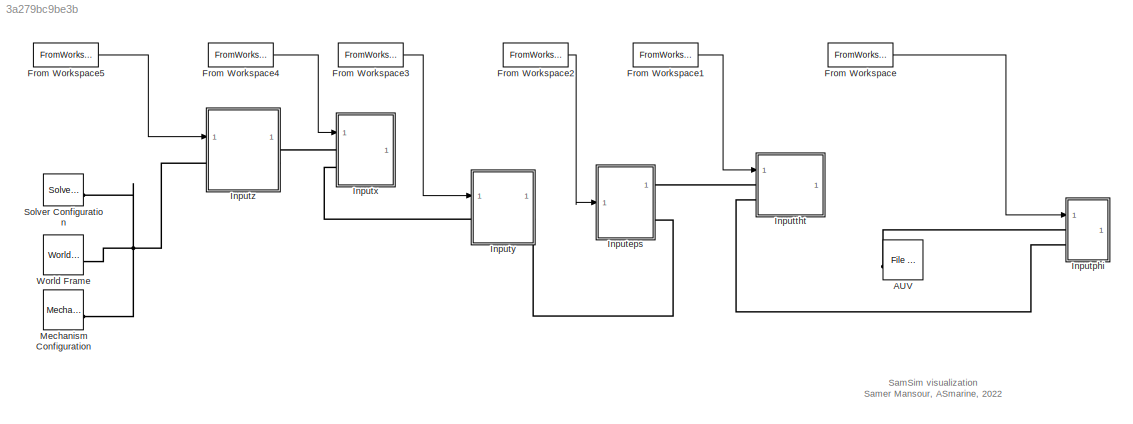
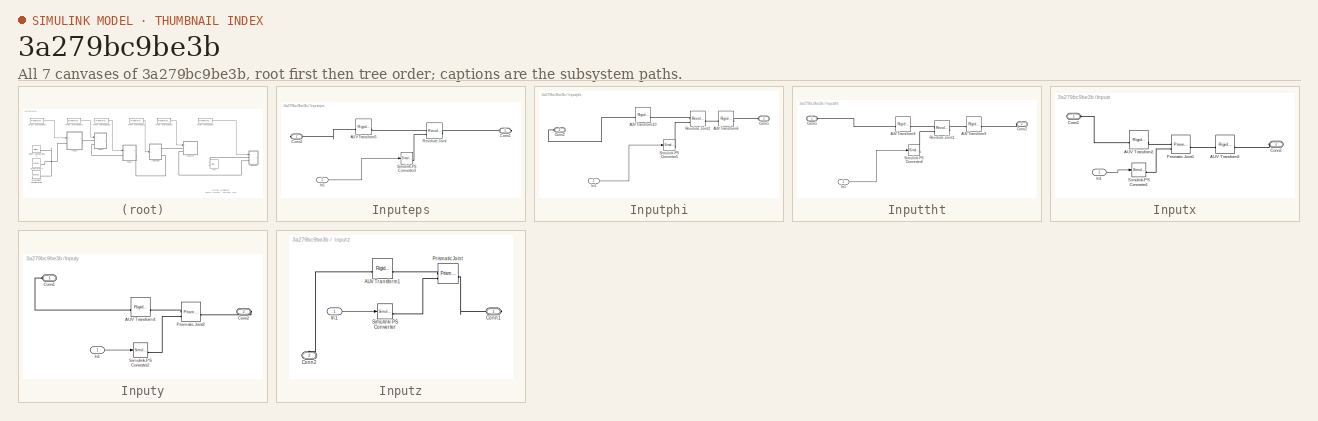
[diagram: thumbnail index - all 7 canvases of the model, root first then tree order]
MODEL slx_3a279bc9be3b
KIND model
CONFIG AbsTol = auto
CONFIG EnableMultiTasking = off
CONFIG FixedStep = auto
CONFIG MaxStep = auto
CONFIG MinStep = auto
CONFIG RelTol = 1e-3
CONFIG SampleTimeConstraint = Unconstrained
CONFIG SolverName = VariableStepAuto
CONFIG StartTime = 0.0
CONFIG StopTime = dur_vid
BLOCK [Reference] AUV  REF=sm_lib/Body Elements/File Solid
  SourceBlock = sm_lib/Body Elements/File Solid
  SourceType = File Solid
BLOCK [FromWorkspace] From Workspace
  VariableName = NNphi
BLOCK [FromWorkspace] From Workspace1
  VariableName = NNtht
BLOCK [FromWorkspace] From Workspace2
  VariableName = NNeps
BLOCK [FromWorkspace] From Workspace3
  VariableName = NNy
BLOCK [FromWorkspace] From Workspace4
  VariableName = NNx
BLOCK [FromWorkspace] From Workspace5
  VariableName = NNz
BLOCK [SubSystem] Inputeps
BLOCK [Reference] Inputeps/AUV Transform5  REF=sm_lib/Frames and
Transforms/Rigid
Transform
  SourceBlock = sm_lib/Frames and\nTransforms/Rigid\nTransform
  SourceType = Rigid\nTransform
BLOCK [PMIOPort] Inputeps/Conn1
  Side = Right
BLOCK [PMIOPort] Inputeps/Conn2
  Port = 2
  Side = Right
BLOCK [Inport] Inputeps/In1
BLOCK [Reference] Inputeps/Revolute Joint  REF=sm_lib/Joints/Revolute Joint
  SourceBlock = sm_lib/Joints/Revolute Joint
  SourceType = Revolute Joint
BLOCK [Reference] Inputeps/Simulink-PS Converter3  REF=nesl_utility/Simulink-PS
Converter
  SourceBlock = nesl_utility/Simulink-PS\nConverter
  SourceType = Simulink-PS\nConverter
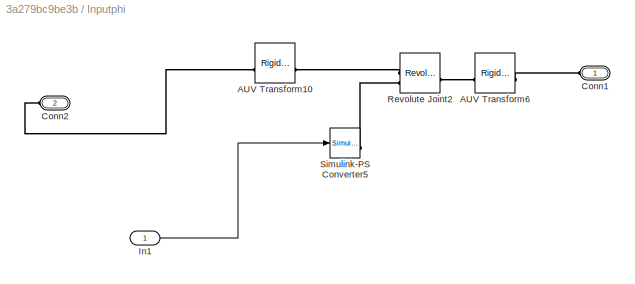
BLOCK [SubSystem] Inputphi
BLOCK [Reference] Inputphi/AUV Transform10  REF=sm_lib/Frames and
Transforms/Rigid
Transform
  SourceBlock = sm_lib/Frames and\nTransforms/Rigid\nTransform
  SourceType = Rigid\nTransform
BLOCK [Reference] Inputphi/AUV Transform6  REF=sm_lib/Frames and
Transforms/Rigid
Transform
  SourceBlock = sm_lib/Frames and\nTransforms/Rigid\nTransform
  SourceType = Rigid\nTransform
BLOCK [PMIOPort] Inputphi/Conn1
  Side = Left
BLOCK [PMIOPort] Inputphi/Conn2
  Port = 2
  Side = Left
BLOCK [Inport] Inputphi/In1
BLOCK [Reference] Inputphi/Revolute Joint2  REF=sm_lib/Joints/Revolute Joint
  SourceBlock = sm_lib/Joints/Revolute Joint
  SourceType = Revolute Joint
BLOCK [Reference] Inputphi/Simulink-PS Converter5  REF=nesl_utility/Simulink-PS
Converter
  SourceBlock = nesl_utility/Simulink-PS\nConverter
  SourceType = Simulink-PS\nConverter
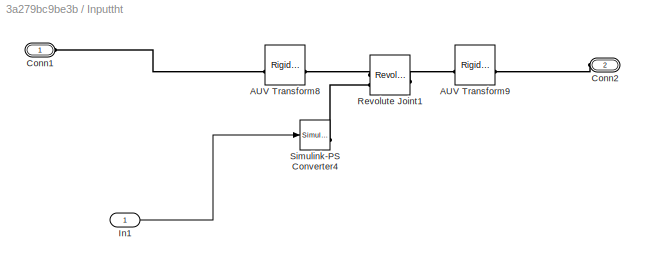
BLOCK [SubSystem] Inputtht
BLOCK [Reference] Inputtht/AUV Transform8  REF=sm_lib/Frames and
Transforms/Rigid
Transform
  SourceBlock = sm_lib/Frames and\nTransforms/Rigid\nTransform
  SourceType = Rigid\nTransform
BLOCK [Reference] Inputtht/AUV Transform9  REF=sm_lib/Frames and
Transforms/Rigid
Transform
  SourceBlock = sm_lib/Frames and\nTransforms/Rigid\nTransform
  SourceType = Rigid\nTransform
BLOCK [PMIOPort] Inputtht/Conn1
  Side = Left
BLOCK [PMIOPort] Inputtht/Conn2
  Port = 2
  Side = Left
BLOCK [Inport] Inputtht/In1
BLOCK [Reference] Inputtht/Revolute Joint1  REF=sm_lib/Joints/Revolute Joint
  SourceBlock = sm_lib/Joints/Revolute Joint
  SourceType = Revolute Joint
BLOCK [Reference] Inputtht/Simulink-PS Converter4  REF=nesl_utility/Simulink-PS
Converter
  SourceBlock = nesl_utility/Simulink-PS\nConverter
  SourceType = Simulink-PS\nConverter
BLOCK [SubSystem] Inputx
BLOCK [Reference] Inputx/AUV Transform2  REF=sm_lib/Frames and
Transforms/Rigid
Transform
  SourceBlock = sm_lib/Frames and\nTransforms/Rigid\nTransform
  SourceType = Rigid\nTransform
BLOCK [Reference] Inputx/AUV Transform3  REF=sm_lib/Frames and
Transforms/Rigid
Transform
  SourceBlock = sm_lib/Frames and\nTransforms/Rigid\nTransform
  SourceType = Rigid\nTransform
BLOCK [PMIOPort] Inputx/Conn1
  Side = Left
BLOCK [PMIOPort] Inputx/Conn2
  Port = 2
  Side = Left
BLOCK [Inport] Inputx/In1
BLOCK [Reference] Inputx/Prismatic Joint1  REF=sm_lib/Joints/Prismatic
Joint
  SourceBlock = sm_lib/Joints/Prismatic\nJoint
  SourceType = Prismatic\nJoint
BLOCK [Reference] Inputx/Simulink-PS Converter1  REF=nesl_utility/Simulink-PS
Converter
  SourceBlock = nesl_utility/Simulink-PS\nConverter
  SourceType = Simulink-PS\nConverter
BLOCK [SubSystem] Inputy
BLOCK [Reference] Inputy/AUV Transform4  REF=sm_lib/Frames and
Transforms/Rigid
Transform
  SourceBlock = sm_lib/Frames and\nTransforms/Rigid\nTransform
  SourceType = Rigid\nTransform
BLOCK [PMIOPort] Inputy/Conn1
  Side = Left
BLOCK [PMIOPort] Inputy/Conn2
  Port = 2
  Side = Right
BLOCK [Inport] Inputy/In1
BLOCK [Reference] Inputy/Prismatic Joint2  REF=sm_lib/Joints/Prismatic
Joint
  SourceBlock = sm_lib/Joints/Prismatic\nJoint
  SourceType = Prismatic\nJoint
BLOCK [Reference] Inputy/Simulink-PS Converter2  REF=nesl_utility/Simulink-PS
Converter
  SourceBlock = nesl_utility/Simulink-PS\nConverter
  SourceType = Simulink-PS\nConverter
BLOCK [SubSystem] Inputz
BLOCK [Reference] Inputz/AUV Transform1  REF=sm_lib/Frames and
Transforms/Rigid
Transform
  SourceBlock = sm_lib/Frames and\nTransforms/Rigid\nTransform
  SourceType = Rigid\nTransform
BLOCK [PMIOPort] Inputz/Conn1
  Side = Right
BLOCK [PMIOPort] Inputz/Conn2
  NameLocation = right
  Port = 2
  Side = Left
BLOCK [Inport] Inputz/In1
BLOCK [Reference] Inputz/Prismatic Joint  REF=sm_lib/Joints/Prismatic
Joint
  SourceBlock = sm_lib/Joints/Prismatic\nJoint
  SourceType = Prismatic\nJoint
BLOCK [Reference] Inputz/Simulink-PS Converter  REF=nesl_utility/Simulink-PS
Converter
  SourceBlock = nesl_utility/Simulink-PS\nConverter
  SourceType = Simulink-PS\nConverter
BLOCK [Reference] Mechanism Configuration  REF=sm_lib/Utilities/Mechanism
Configuration
  SourceBlock = sm_lib/Utilities/Mechanism\nConfiguration
  SourceType = Mechanism\nConfiguration
BLOCK [Reference] Solver Configuration  REF=nesl_utility/Solver
Configuration
  SourceBlock = nesl_utility/Solver\nConfiguration
  SourceType = Solver\nConfiguration
BLOCK [Reference] World Frame  REF=sm_lib/Frames and
Transforms/World Frame
  SourceBlock = sm_lib/Frames and\nTransforms/World Frame
  SourceType = World Frame
ANNOTATION (root): SamSim visualization Samer Mansour, ASmarine, 2022
LINE From Workspace1:1 -> Inputtht:1
LINE From Workspace2:1 -> Inputeps:1
LINE From Workspace3:1 -> Inputy:1
LINE From Workspace4:1 -> Inputx:1
LINE From Workspace5:1 -> Inputz:1
LINE From Workspace:1 -> Inputphi:1
LINE Inputeps/In1:1 -> Inputeps/Simulink-PS Converter3:1
LINE Inputphi/In1:1 -> Inputphi/Simulink-PS Converter5:1
LINE Inputtht/In1:1 -> Inputtht/Simulink-PS Converter4:1
LINE Inputx/In1:1 -> Inputx/Simulink-PS Converter1:1
LINE Inputy/In1:1 -> Inputy/Simulink-PS Converter2:1
LINE Inputz/In1:1 -> Inputz/Simulink-PS Converter:1
PLINE AUV:LConn1 -- Inputphi:LConn1
PLINE Inputeps/AUV Transform5:LConn1 -- Inputeps/Revolute Joint:LConn1
PLINE Inputeps/AUV Transform5:RConn1 -- Inputeps/Conn2:RConn1
PLINE Inputeps/Conn1:RConn1 -- Inputeps/Revolute Joint:RConn1
PLINE Inputeps/Revolute Joint:LConn2 -- Inputeps/Simulink-PS Converter3:RConn1
PLINE Inputeps:RConn1 -- Inputtht:LConn1
PLINE Inputeps:RConn2 -- Inputy:RConn1
PLINE Inputphi/AUV Transform10:LConn1 -- Inputphi/Conn2:RConn1
PLINE Inputphi/AUV Transform10:RConn1 -- Inputphi/Revolute Joint2:LConn1
PLINE Inputphi/AUV Transform6:LConn1 -- Inputphi/Conn1:RConn1
PLINE Inputphi/AUV Transform6:RConn1 -- Inputphi/Revolute Joint2:RConn1
PLINE Inputphi/Revolute Joint2:LConn2 -- Inputphi/Simulink-PS Converter5:RConn1
PLINE Inputphi:LConn2 -- Inputtht:LConn2
PLINE Inputtht/AUV Transform8:LConn1 -- Inputtht/Conn1:RConn1
PLINE Inputtht/AUV Transform8:RConn1 -- Inputtht/Revolute Joint1:LConn1
PLINE Inputtht/AUV Transform9:LConn1 -- Inputtht/Conn2:RConn1
PLINE Inputtht/AUV Transform9:RConn1 -- Inputtht/Revolute Joint1:RConn1
PLINE Inputtht/Revolute Joint1:LConn2 -- Inputtht/Simulink-PS Converter4:RConn1
PLINE Inputx/AUV Transform2:LConn1 -- Inputx/Conn1:RConn1
PLINE Inputx/AUV Transform2:RConn1 -- Inputx/Prismatic Joint1:LConn1
PLINE Inputx/AUV Transform3:LConn1 -- Inputx/Conn2:RConn1
PLINE Inputx/AUV Transform3:RConn1 -- Inputx/Prismatic Joint1:RConn1
PLINE Inputx/Prismatic Joint1:LConn2 -- Inputx/Simulink-PS Converter1:RConn1
PLINE Inputx:LConn1 -- Inputz:RConn1
PLINE Inputx:LConn2 -- Inputy:LConn1
PLINE Inputy/AUV Transform4:LConn1 -- Inputy/Conn1:RConn1
PLINE Inputy/AUV Transform4:RConn1 -- Inputy/Prismatic Joint2:LConn1
PLINE Inputy/Conn2:RConn1 -- Inputy/Prismatic Joint2:RConn1
PLINE Inputy/Prismatic Joint2:LConn2 -- Inputy/Simulink-PS Converter2:RConn1
PLINE Inputz/AUV Transform1:LConn1 -- Inputz/Conn2:RConn1
PLINE Inputz/AUV Transform1:RConn1 -- Inputz/Prismatic Joint:LConn1
PLINE Inputz/Conn1:RConn1 -- Inputz/Prismatic Joint:RConn1
PLINE Inputz/Prismatic Joint:LConn2 -- Inputz/Simulink-PS Converter:RConn1
PNET net1: Inputz:LConn1 -- Mechanism Configuration:RConn1 -- Solver Configuration:RConn1 -- World Frame:RConn1
note: PNET lines group multi-terminal physical nets as a canonical sorted terminal list (undirected conserving connections); 2-terminal nets keep the pairwise PLINE form
